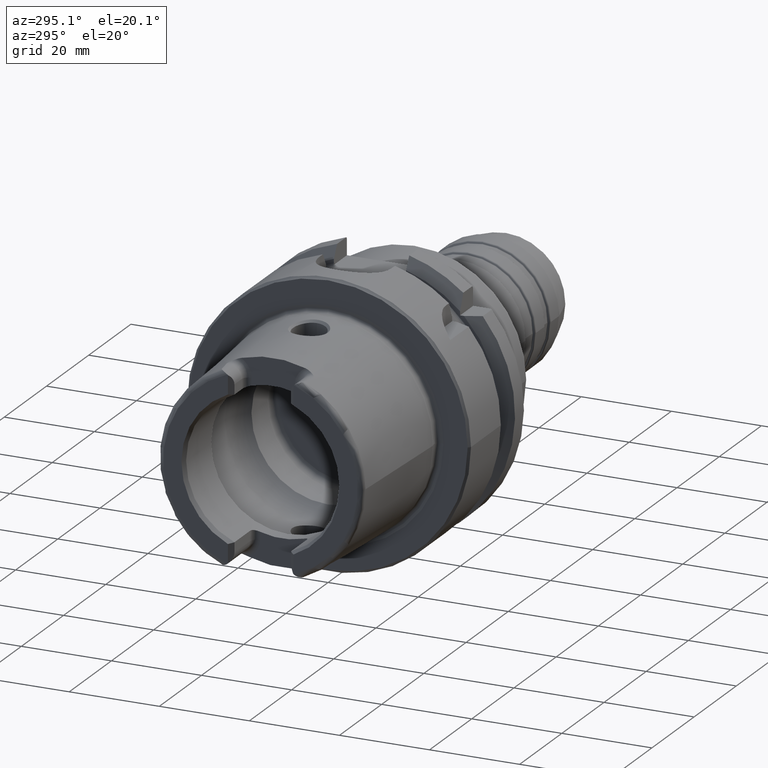
[diagram: clean part render]
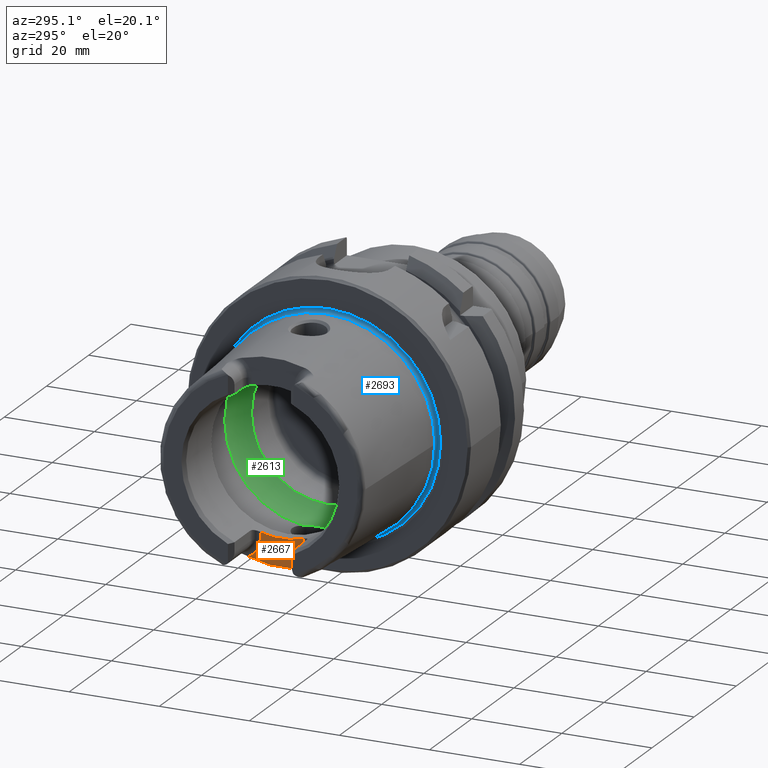
[diagram: same view with three faces highlighted in distinct colors, each labeled with its STEP entity id]
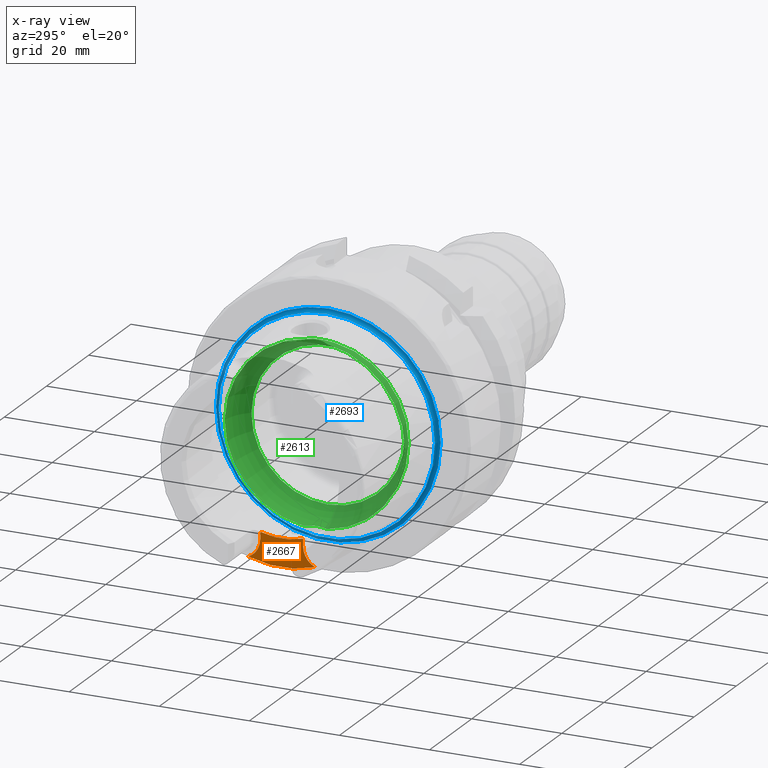
[diagram: x-ray of the same camera — body ghosted, the three highlighted faces saturated]
A machine part, auxiliary view with three faces highlighted in distinct colors.
The next image is the same camera in x-ray (body ghosted, the three faces saturated) — at least one of them is partly hidden behind the body in this view.
Their STEP definitions:

[orange] entity #2667 — the highlighted planar face has unit normal (-1, 0, 0).
#176=PLANE('',#3014);
#313=FACE_OUTER_BOUND('',#458,.T.);
#458=EDGE_LOOP('',(#2358,#2359,#2360,#2361,#2362,#2363));
#593=LINE('',#5504,#710);
#595=LINE('',#5513,#712);
#710=VECTOR('',#3786,10.);
#712=VECTOR('',#3798,10.);
#847=CIRCLE('',#2898,23.2184268537074);
#904=CIRCLE('',#3009,4.38);
#906=CIRCLE('',#3015,17.);
#907=CIRCLE('',#3016,4.38);
#1105=VERTEX_POINT('',#4585);
#1106=VERTEX_POINT('',#4596);
#1214=VERTEX_POINT('',#5489);
#1215=VERTEX_POINT('',#5493);
#1216=VERTEX_POINT('',#5510);
#1217=VERTEX_POINT('',#5512);
#1443=EDGE_CURVE('',#1105,#1106,#847,.T.);
#1612=EDGE_CURVE('',#1214,#1105,#904,.T.);
#1614=EDGE_CURVE('',#1215,#1214,#593,.T.);
#1617=EDGE_CURVE('',#1216,#1215,#906,.T.);
#1618=EDGE_CURVE('',#1217,#1216,#595,.T.);
#1619=EDGE_CURVE('',#1106,#1217,#907,.T.);
#2358=ORIENTED_EDGE('',*,*,#1612,.F.);
#2359=ORIENTED_EDGE('',*,*,#1614,.F.);
#2360=ORIENTED_EDGE('',*,*,#1617,.F.);
#2361=ORIENTED_EDGE('',*,*,#1618,.F.);
#2362=ORIENTED_EDGE('',*,*,#1619,.F.);
#2363=ORIENTED_EDGE('',*,*,#1443,.F.);
#2667=ADVANCED_FACE('',(#313),#176,.T.);
#2898=AXIS2_PLACEMENT_3D('',#4597,#3504,#3505);
#3009=AXIS2_PLACEMENT_3D('',#5491,#3782,#3783);
#3014=AXIS2_PLACEMENT_3D('',#5509,#3794,#3795);
#3015=AXIS2_PLACEMENT_3D('',#5511,#3796,#3797);
#3016=AXIS2_PLACEMENT_3D('',#5514,#3799,#3800);
#3504=DIRECTION('center_axis',(1.,0.,0.));
#3505=DIRECTION('ref_axis',(0.,1.,0.));
#3782=DIRECTION('center_axis',(-1.,0.,0.));
#3783=DIRECTION('ref_axis',(0.,0.522806483831831,-0.852451394780604));
#3786=DIRECTION('',(0.,0.,-1.));
#3794=DIRECTION('center_axis',(-1.,0.,0.));
#3795=DIRECTION('ref_axis',(0.,0.,1.));
#3796=DIRECTION('center_axis',(-1.,0.,0.));
#3797=DIRECTION('ref_axis',(0.,1.,0.));
#3798=DIRECTION('',(0.,0.,1.));
#3799=DIRECTION('center_axis',(-1.,0.,0.));
#3800=DIRECTION('ref_axis',(0.,-0.522806483831831,-0.852451394780604));
#4585=CARTESIAN_POINT('',(-22.,-7.4031250016059,-22.0065691504051));
#4596=CARTESIAN_POINT('',(-22.,7.4031250016059,-22.0065691504051));
#4597=CARTESIAN_POINT('Origin',(-22.,0.,0.));
#5489=CARTESIAN_POINT('',(-22.,-4.77,-17.99));
#5491=CARTESIAN_POINT('Origin',(-22.,-9.15,-17.99));
#5493=CARTESIAN_POINT('',(-22.,-4.77,-16.3170800083839));
#5504=CARTESIAN_POINT('',(-22.,-4.77,-17.8001077154309));
#5509=CARTESIAN_POINT('Origin',(-22.,0.,-17.6102154308617));
#5510=CARTESIAN_POINT('',(-22.,4.77,-16.3170800083839));
#5511=CARTESIAN_POINT('Origin',(-22.,0.,0.));
#5512=CARTESIAN_POINT('',(-22.,4.77,-17.99));
#5513=CARTESIAN_POINT('',(-22.,4.77,-14.3051077154309));
#5514=CARTESIAN_POINT('Origin',(-22.,9.15,-17.99));

[blue] entity #2693 — the highlighted toroidal blend (fillet) surface has major radius 24.8204 mm and minor (blend) radius 0.8 mm.
#130=TOROIDAL_SURFACE('',#3082,24.8204308617234,0.8);
#339=FACE_OUTER_BOUND('',#486,.T.);
#486=EDGE_LOOP('',(#2512,#2513,#2514,#2515,#2516,#2517,#2518,#2519));
#936=CIRCLE('',#3066,24.9317693424915);
#937=CIRCLE('',#3067,24.9317693424915);
#940=CIRCLE('',#3070,24.9317693424915);
#945=CIRCLE('',#3079,24.0204308617234);
#946=CIRCLE('',#3080,24.0204308617234);
#947=CIRCLE('',#3081,24.0204308617234);
#948=CIRCLE('',#3083,0.8);
#1233=VERTEX_POINT('',#5593);
#1234=VERTEX_POINT('',#5594);
#1235=VERTEX_POINT('',#5596);
#1242=VERTEX_POINT('',#5618);
#1243=VERTEX_POINT('',#5619);
#1244=VERTEX_POINT('',#5621);
#1653=EDGE_CURVE('',#1233,#1234,#936,.T.);
#1654=EDGE_CURVE('',#1234,#1235,#937,.T.);
#1658=EDGE_CURVE('',#1235,#1233,#940,.T.);
#1665=EDGE_CURVE('',#1242,#1243,#945,.T.);
#1666=EDGE_CURVE('',#1244,#1242,#946,.T.);
#1668=EDGE_CURVE('',#1243,#1244,#947,.T.);
#1669=EDGE_CURVE('',#1243,#1234,#948,.T.);
#2512=ORIENTED_EDGE('',*,*,#1665,.T.);
#2513=ORIENTED_EDGE('',*,*,#1669,.T.);
#2514=ORIENTED_EDGE('',*,*,#1653,.F.);
#2515=ORIENTED_EDGE('',*,*,#1658,.F.);
#2516=ORIENTED_EDGE('',*,*,#1654,.F.);
#2517=ORIENTED_EDGE('',*,*,#1669,.F.);
#2518=ORIENTED_EDGE('',*,*,#1668,.T.);
#2519=ORIENTED_EDGE('',*,*,#1666,.T.);
#2693=ADVANCED_FACE('',(#339),#130,.F.);
#3066=AXIS2_PLACEMENT_3D('',#5595,#3903,#3904);
#3067=AXIS2_PLACEMENT_3D('',#5597,#3905,#3906);
#3070=AXIS2_PLACEMENT_3D('',#5603,#3912,#3913);
#3079=AXIS2_PLACEMENT_3D('',#5620,#3932,#3933);
#3080=AXIS2_PLACEMENT_3D('',#5622,#3934,#3935);
#3081=AXIS2_PLACEMENT_3D('',#5624,#3937,#3938);
#3082=AXIS2_PLACEMENT_3D('',#5625,#3939,#3940);
#3083=AXIS2_PLACEMENT_3D('',#5626,#3941,#3942);
#3903=DIRECTION('center_axis',(1.,0.,0.));
#3904=DIRECTION('ref_axis',(0.,0.,-1.));
#3905=DIRECTION('center_axis',(1.,0.,0.));
#3906=DIRECTION('ref_axis',(0.,0.,-1.));
#3912=DIRECTION('center_axis',(1.,0.,0.));
#3913=DIRECTION('ref_axis',(0.,0.,-1.));
#3932=DIRECTION('center_axis',(1.,0.,0.));
#3933=DIRECTION('ref_axis',(0.,0.,-1.));
#3934=DIRECTION('center_axis',(1.,0.,0.));
#3935=DIRECTION('ref_axis',(0.,0.,-1.));
#3937=DIRECTION('center_axis',(1.,0.,0.));
#3938=DIRECTION('ref_axis',(0.,0.,-1.));
#3939=DIRECTION('center_axis',(1.,0.,0.));
#3940=DIRECTION('ref_axis',(0.,0.,-1.));
#3941=DIRECTION('center_axis',(0.,-1.,-1.22464679914735E-16));
#3942=DIRECTION('ref_axis',(0.,-1.22464679914735E-16,1.));
#5593=CARTESIAN_POINT('',(0.0922144549932569,24.9317693424915,0.));
#5594=CARTESIAN_POINT('',(0.0922144549932569,-3.05326115223623E-15,24.9317693424915));
#5595=CARTESIAN_POINT('Origin',(0.0922144549932569,0.,0.));
#5596=CARTESIAN_POINT('',(0.092214454993257,-24.9317693424915,-3.05326115223623E-15));
#5597=CARTESIAN_POINT('Origin',(0.0922144549932569,0.,0.));
#5603=CARTESIAN_POINT('Origin',(0.0922144549932569,0.,0.));
#5618=CARTESIAN_POINT('',(-0.7,24.0204308617234,0.));
#5619=CARTESIAN_POINT('',(-0.7,-2.94165437689499E-15,24.0204308617234));
#5620=CARTESIAN_POINT('Origin',(-0.7,0.,0.));
#5621=CARTESIAN_POINT('',(-0.7,-24.0204308617234,-2.94165437689499E-15));
#5622=CARTESIAN_POINT('Origin',(-0.7,0.,0.));
#5624=CARTESIAN_POINT('Origin',(-0.7,0.,0.));
#5625=CARTESIAN_POINT('Origin',(-0.7,0.,0.));
#5626=CARTESIAN_POINT('Origin',(-0.7,-3.03962612082678E-15,24.8204308617234));

[green] entity #2613 — the highlighted toroidal blend (fillet) surface has major radius 12 mm and minor (blend) radius 8 mm.
#49=B_SPLINE_CURVE_WITH_KNOTS('',3,(#4694,#4695,#4696,#4697,#4698,#4699,
#4700,#4701,#4702,#4703,#4704,#4705),.UNSPECIFIED.,.F.,.F.,(4,2,2,2,2,4),
(-0.576707489926969,-0.455716402860838,-0.365368737325041,-0.32054974107213,
-0.288976283252766,-0.288398128098722),.UNSPECIFIED.);
#51=B_SPLINE_CURVE_WITH_KNOTS('',3,(#4738,#4739,#4740,#4741,#4742,#4743,
#4744,#4745,#4746,#4747),.UNSPECIFIED.,.F.,.F.,(4,2,2,2,4),(-0.288398128098722,
-0.257600392372142,-0.213718373510557,-0.137948403428905,0.),
 .UNSPECIFIED.);
#54=B_SPLINE_CURVE_WITH_KNOTS('',3,(#4863,#4864,#4865,#4866,#4867,#4868,
#4869,#4870,#4871,#4872,#4873,#4874),.UNSPECIFIED.,.F.,.F.,(4,2,2,2,2,4),
(-0.576707489926933,-0.455716402860807,-0.365368737325012,-0.320549741072106,
-0.288976283252744,-0.288398128098698),.UNSPECIFIED.);
#56=B_SPLINE_CURVE_WITH_KNOTS('',3,(#4907,#4908,#4909,#4910,#4911,#4912,
#4913,#4914,#4915,#4916),.UNSPECIFIED.,.F.,.F.,(4,2,2,2,4),(-0.288398128098698,
-0.257600392372128,-0.213718373510553,-0.137948403428902,0.),
 .UNSPECIFIED.);
#110=TOROIDAL_SURFACE('',#2911,12.,8.);
#259=FACE_OUTER_BOUND('',#403,.T.);
#403=EDGE_LOOP('',(#2056,#2057,#2058,#2059,#2060,#2061,#2062,#2063,#2064,
#2065,#2066,#2067));
#851=CIRCLE('',#2905,20.);
#855=CIRCLE('',#2909,20.);
#856=CIRCLE('',#2910,20.);
#857=CIRCLE('',#2912,17.);
#858=CIRCLE('',#2913,17.);
#859=CIRCLE('',#2914,17.);
#860=CIRCLE('',#2915,8.);
#1113=VERTEX_POINT('',#4691);
#1114=VERTEX_POINT('',#4693);
#1115=VERTEX_POINT('',#4706);
#1118=VERTEX_POINT('',#4861);
#1119=VERTEX_POINT('',#4862);
#1120=VERTEX_POINT('',#4875);
#1122=VERTEX_POINT('',#4921);
#1126=VERTEX_POINT('',#4933);
#1127=VERTEX_POINT('',#4934);
#1128=VERTEX_POINT('',#4936);
#1455=EDGE_CURVE('',#1114,#1113,#49,.T.);
#1457=EDGE_CURVE('',#1113,#1115,#51,.T.);
#1461=EDGE_CURVE('',#1118,#1119,#54,.T.);
#1463=EDGE_CURVE('',#1119,#1120,#56,.T.);
#1466=EDGE_CURVE('',#1122,#1118,#851,.T.);
#1471=EDGE_CURVE('',#1115,#1122,#855,.T.);
#1472=EDGE_CURVE('',#1120,#1114,#856,.T.);
#1473=EDGE_CURVE('',#1126,#1127,#857,.T.);
#1474=EDGE_CURVE('',#1128,#1126,#858,.T.);
#1475=EDGE_CURVE('',#1127,#1128,#859,.T.);
#1476=EDGE_CURVE('',#1127,#1113,#860,.T.);
#2056=ORIENTED_EDGE('',*,*,#1473,.F.);
#2057=ORIENTED_EDGE('',*,*,#1474,.F.);
#2058=ORIENTED_EDGE('',*,*,#1475,.F.);
#2059=ORIENTED_EDGE('',*,*,#1476,.T.);
#2060=ORIENTED_EDGE('',*,*,#1457,.T.);
#2061=ORIENTED_EDGE('',*,*,#1471,.T.);
#2062=ORIENTED_EDGE('',*,*,#1466,.T.);
#2063=ORIENTED_EDGE('',*,*,#1461,.T.);
#2064=ORIENTED_EDGE('',*,*,#1463,.T.);
#2065=ORIENTED_EDGE('',*,*,#1472,.T.);
#2066=ORIENTED_EDGE('',*,*,#1455,.T.);
#2067=ORIENTED_EDGE('',*,*,#1476,.F.);
#2613=ADVANCED_FACE('',(#259),#110,.F.);
#2905=AXIS2_PLACEMENT_3D('',#4922,#3523,#3524);
#2909=AXIS2_PLACEMENT_3D('',#4930,#3532,#3533);
#2910=AXIS2_PLACEMENT_3D('',#4931,#3534,#3535);
#2911=AXIS2_PLACEMENT_3D('',#4932,#3536,#3537);
#2912=AXIS2_PLACEMENT_3D('',#4935,#3538,#3539);
#2913=AXIS2_PLACEMENT_3D('',#4937,#3540,#3541);
#2914=AXIS2_PLACEMENT_3D('',#4938,#3542,#3543);
#2915=AXIS2_PLACEMENT_3D('',#4939,#3544,#3545);
#3523=DIRECTION('center_axis',(-1.,0.,0.));
#3524=DIRECTION('ref_axis',(0.,0.,1.));
#3532=DIRECTION('center_axis',(-1.,0.,0.));
#3533=DIRECTION('ref_axis',(0.,0.,1.));
#3534=DIRECTION('center_axis',(-1.,0.,0.));
#3535=DIRECTION('ref_axis',(0.,0.,1.));
#3536=DIRECTION('center_axis',(-1.,0.,0.));
#3537=DIRECTION('ref_axis',(0.,0.,1.));
#3538=DIRECTION('center_axis',(-1.,0.,0.));
#3539=DIRECTION('ref_axis',(0.,0.,1.));
#3540=DIRECTION('center_axis',(-1.,0.,0.));
#3541=DIRECTION('ref_axis',(0.,0.,1.));
#3542=DIRECTION('center_axis',(-1.,0.,0.));
#3543=DIRECTION('ref_axis',(0.,0.,1.));
#3544=DIRECTION('center_axis',(0.,1.,-1.22464679914735E-16));
#3545=DIRECTION('ref_axis',(0.,-1.22464679914735E-16,-1.));
#4691=CARTESIAN_POINT('',(-5.25,-3.6885832437187E-16,-19.9307944116589));
#4693=CARTESIAN_POINT('',(-6.3,2.60240273593461,-19.8299646999182));
#4694=CARTESIAN_POINT('Ctrl Pts',(-6.3,2.60240273593462,-19.8299646999182));
#4695=CARTESIAN_POINT('Ctrl Pts',(-6.02135700807983,2.31330986502881,-19.8679040553113));
#4696=CARTESIAN_POINT('Ctrl Pts',(-5.79033009489734,1.98064918550539,-19.890591169119));
#4697=CARTESIAN_POINT('Ctrl Pts',(-5.4867559347239,1.34543685595402,-19.9160762142355));
#4698=CARTESIAN_POINT('Ctrl Pts',(-5.39007954405641,1.05909527261747,-19.9223713998338));
#4699=CARTESIAN_POINT('Ctrl Pts',(-5.29825184053117,0.617966692523932,-19.9280498303184));
#4700=CARTESIAN_POINT('Ctrl Pts',(-5.27657003878054,0.469994704559193,-19.9292919985393));
#4701=CARTESIAN_POINT('Ctrl Pts',(-5.25476109400056,0.216252544174992,-19.9305312191434));
#4702=CARTESIAN_POINT('Ctrl Pts',(-5.25016676806113,0.111043433894874,-19.9307851133249));
#4703=CARTESIAN_POINT('Ctrl Pts',(-5.25000148602981,0.00385492015310341,
-19.9307943288045));
#4704=CARTESIAN_POINT('Ctrl Pts',(-5.25,0.00192745284672571,-19.9307944116589));
#4705=CARTESIAN_POINT('Ctrl Pts',(-5.25,-1.22655814364354E-15,-19.9307944116589));
#4706=CARTESIAN_POINT('',(-6.3,-2.60240273593461,-19.8299646999182));
#4738=CARTESIAN_POINT('Ctrl Pts',(-5.25,-1.21430643318376E-15,-19.9307944116589));
#4739=CARTESIAN_POINT('Ctrl Pts',(-5.25,-0.102673448439657,-19.9307944116589));
#4740=CARTESIAN_POINT('Ctrl Pts',(-5.25421684930313,-0.205305866402814,
-19.9305613545514));
#4741=CARTESIAN_POINT('Ctrl Pts',(-5.27464110625334,-0.453434827119473,
-19.9294026077432));
#4742=CARTESIAN_POINT('Ctrl Pts',(-5.29516467443997,-0.598409706843586,
-19.9282296486912));
#4743=CARTESIAN_POINT('Ctrl Pts',(-5.37406649070666,-0.989396372030705,
-19.9233785291009));
#4744=CARTESIAN_POINT('Ctrl Pts',(-5.44891810120348,-1.23128278857668,-19.9185486409462));
#4745=CARTESIAN_POINT('Ctrl Pts',(-5.72687568605109,-1.88691112132017,-19.8966847278005));
#4746=CARTESIAN_POINT('Ctrl Pts',(-5.98230637151864,-2.2727947221344,-19.8732210954731));
#4747=CARTESIAN_POINT('Ctrl Pts',(-6.3,-2.60240273593462,-19.8299646999182));
#4861=CARTESIAN_POINT('',(-6.3,-2.60240273593461,19.8299646999182));
#4862=CARTESIAN_POINT('',(-5.25,1.12300386496818E-15,19.9307944116589));
#4863=CARTESIAN_POINT('Ctrl Pts',(-6.3,-2.60240273593462,19.8299646999182));
#4864=CARTESIAN_POINT('Ctrl Pts',(-6.02135700807986,-2.31330986502884,19.8679040553113));
#4865=CARTESIAN_POINT('Ctrl Pts',(-5.79033009489738,-1.98064918550546,19.890591169119));
#4866=CARTESIAN_POINT('Ctrl Pts',(-5.48675593472392,-1.34543685595409,19.9160762142355));
#4867=CARTESIAN_POINT('Ctrl Pts',(-5.39007954405642,-1.05909527261754,19.9223713998338));
#4868=CARTESIAN_POINT('Ctrl Pts',(-5.29825184053117,-0.617966692523972,
19.9280498303184));
#4869=CARTESIAN_POINT('Ctrl Pts',(-5.27657003878054,-0.469994704559233,
19.9292919985393));
#4870=CARTESIAN_POINT('Ctrl Pts',(-5.25476109400056,-0.216252544174991,
19.9305312191434));
#4871=CARTESIAN_POINT('Ctrl Pts',(-5.25016676806113,-0.111043433894851,
19.9307851133249));
#4872=CARTESIAN_POINT('Ctrl Pts',(-5.2500014860298,-0.00385492015311072,
19.9307943288045));
#4873=CARTESIAN_POINT('Ctrl Pts',(-5.25,-0.00192745284672909,19.9307944116589));
#4874=CARTESIAN_POINT('Ctrl Pts',(-5.25,1.81500434093853E-15,19.9307944116589));
#4875=CARTESIAN_POINT('',(-6.3,2.60240273593461,19.8299646999182));
#4907=CARTESIAN_POINT('Ctrl Pts',(-5.25,1.85615411929518E-15,19.9307944116589));
#4908=CARTESIAN_POINT('Ctrl Pts',(-5.25,0.1026734484396,19.9307944116589));
#4909=CARTESIAN_POINT('Ctrl Pts',(-5.25421684930312,0.20530586640278,19.9305613545513));
#4910=CARTESIAN_POINT('Ctrl Pts',(-5.27464110625333,0.453434827119507,19.9294026077432));
#4911=CARTESIAN_POINT('Ctrl Pts',(-5.29516467443997,0.598409706843592,19.9282296486912));
#4912=CARTESIAN_POINT('Ctrl Pts',(-5.37406649070666,0.989396372030691,19.9233785291009));
#4913=CARTESIAN_POINT('Ctrl Pts',(-5.44891810120347,1.23128278857668,19.9185486409462));
#4914=CARTESIAN_POINT('Ctrl Pts',(-5.72687568605109,1.88691112132019,19.8966847278005));
#4915=CARTESIAN_POINT('Ctrl Pts',(-5.98230637151865,2.27279472213441,19.8732210954731));
#4916=CARTESIAN_POINT('Ctrl Pts',(-6.3,2.60240273593462,19.8299646999182));
#4921=CARTESIAN_POINT('',(-6.3,-20.,2.44929359829471E-15));
#4922=CARTESIAN_POINT('Origin',(-6.3,0.,0.));
#4930=CARTESIAN_POINT('Origin',(-6.3,0.,0.));
#4931=CARTESIAN_POINT('Origin',(-6.3,0.,0.));
#4932=CARTESIAN_POINT('Origin',(-6.3,0.,0.));
#4933=CARTESIAN_POINT('',(-0.055002001601602,17.,0.));
#4934=CARTESIAN_POINT('',(-0.0550020016016017,-2.0818995585505E-15,-17.));
#4935=CARTESIAN_POINT('Origin',(-0.0550020016016017,0.,0.));
#4936=CARTESIAN_POINT('',(-0.0550020016016017,-17.,2.0818995585505E-15));
#4937=CARTESIAN_POINT('Origin',(-0.0550020016016017,0.,0.));
#4938=CARTESIAN_POINT('Origin',(-0.0550020016016017,0.,0.));
#4939=CARTESIAN_POINT('Origin',(-6.3,-1.46957615897682E-15,-12.));